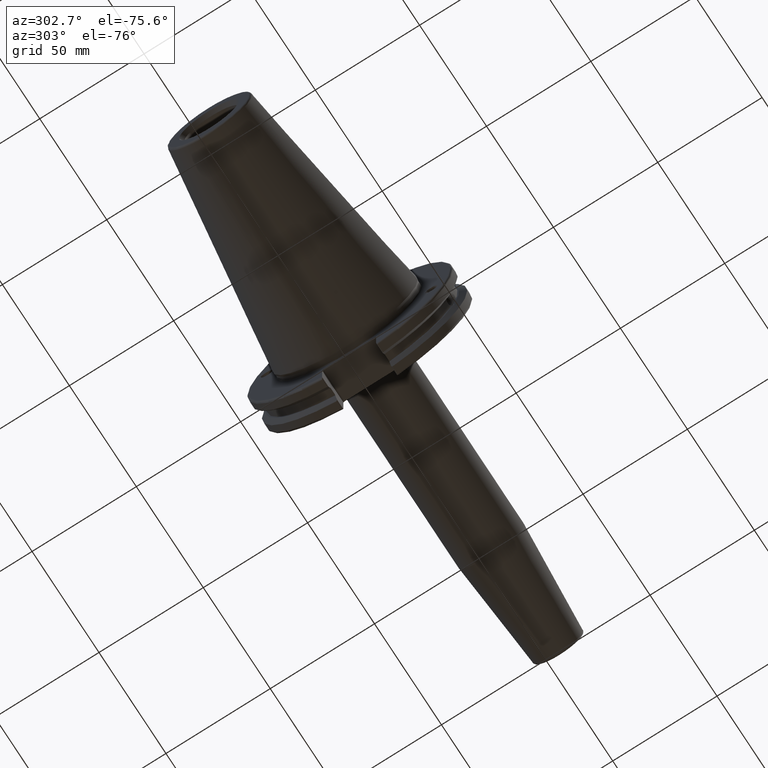
[diagram: clean part render]
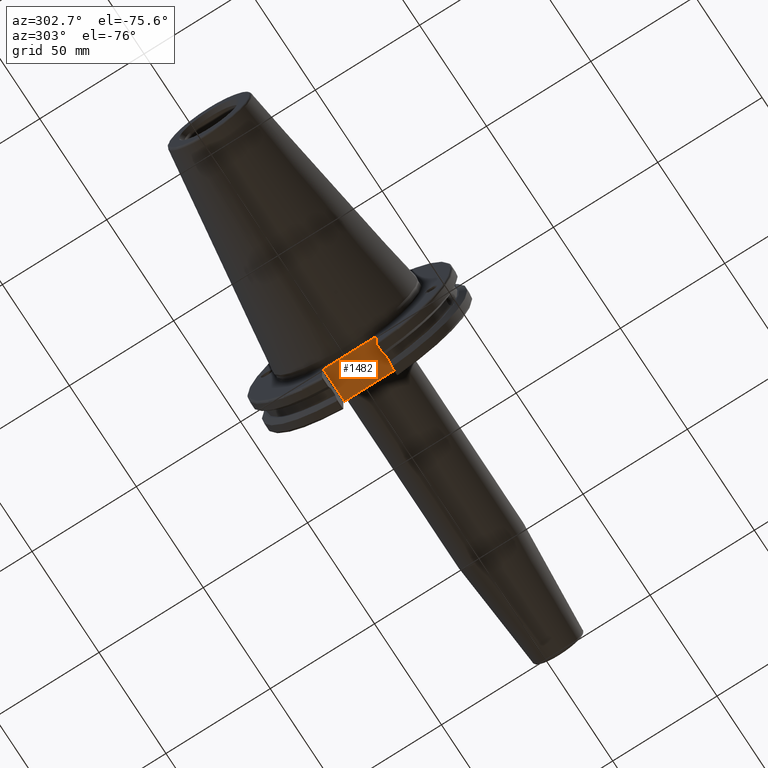
[diagram: same view with one face highlighted and labeled with its STEP entity id]
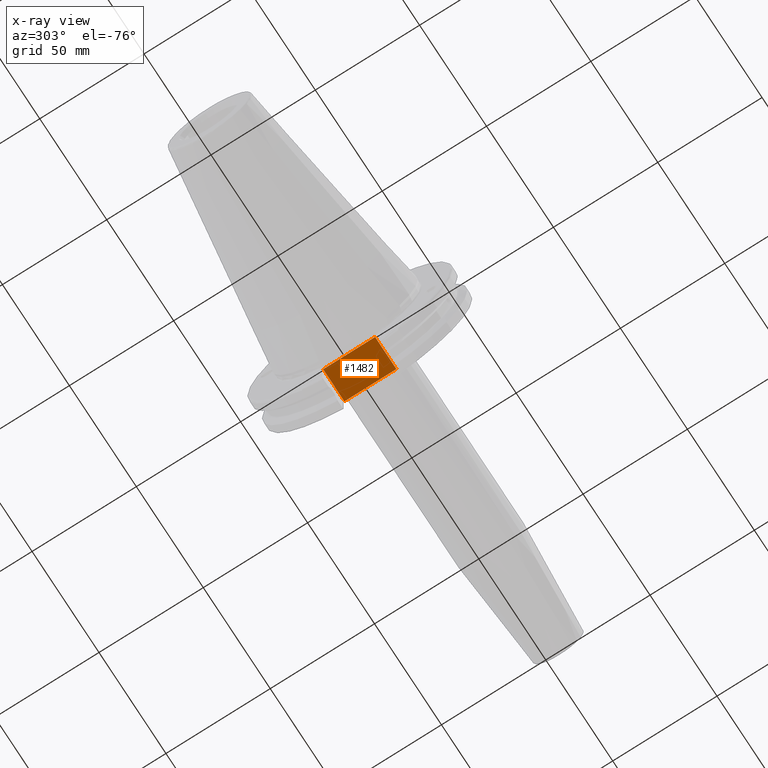
[diagram: x-ray of the same camera — body ghosted, the highlighted face saturated]
A machine part, auxiliary view. The second image highlights one B-rep face of the part: STEP entity #1482.
The next image is the same camera in x-ray: the body ghosted, the highlighted face saturated — about 0% of this face is hidden behind the body in this view.
In plain terms, the highlighted planar face has unit normal (0, 0, 1).
Its self-contained STEP definition (entity closure, byte-faithful):
#93=LINE('',#2161,#183);
#133=LINE('',#2744,#223);
#154=LINE('',#2956,#244);
#155=LINE('',#2958,#245);
#183=VECTOR('',#1752,10.);
#223=VECTOR('',#1930,10.);
#244=VECTOR('',#2009,10.);
#245=VECTOR('',#2012,10.);
#331=PLANE('',#1654);
#403=FACE_OUTER_BOUND('',#505,.T.);
#505=EDGE_LOOP('',(#1293,#1294,#1295,#1296));
#628=VERTEX_POINT('',#2158);
#629=VERTEX_POINT('',#2160);
#712=VERTEX_POINT('',#2741);
#713=VERTEX_POINT('',#2743);
#782=EDGE_CURVE('',#628,#629,#93,.T.);
#889=EDGE_CURVE('',#712,#713,#133,.T.);
#944=EDGE_CURVE('',#629,#712,#154,.T.);
#945=EDGE_CURVE('',#713,#628,#155,.T.);
#1293=ORIENTED_EDGE('',*,*,#944,.F.);
#1294=ORIENTED_EDGE('',*,*,#782,.F.);
#1295=ORIENTED_EDGE('',*,*,#945,.F.);
#1296=ORIENTED_EDGE('',*,*,#889,.F.);
#1482=ADVANCED_FACE('',(#403),#331,.F.);
#1654=AXIS2_PLACEMENT_3D('',#2957,#2010,#2011);
#1752=DIRECTION('',(0.,1.,0.));
#1930=DIRECTION('',(0.,-1.,0.));
#2009=DIRECTION('',(-1.,2.63163976207444E-16,0.));
#2010=DIRECTION('center_axis',(0.,0.,1.));
#2011=DIRECTION('ref_axis',(1.,0.,0.));
#2012=DIRECTION('',(1.,2.63163976207445E-16,0.));
#2158=CARTESIAN_POINT('',(19.05,-12.45,-35.306));
#2160=CARTESIAN_POINT('',(19.05,12.45,-35.306));
#2161=CARTESIAN_POINT('',(19.05,-3.33066907387547E-15,-35.306));
#2741=CARTESIAN_POINT('',(3.175,12.45,-35.306));
#2743=CARTESIAN_POINT('',(3.175,-12.45,-35.306));
#2744=CARTESIAN_POINT('',(3.175,24.60625,-35.306));
#2956=CARTESIAN_POINT('',(10.63125,12.45,-35.306));
#2957=CARTESIAN_POINT('Origin',(18.0875,-6.66133814775094E-15,-35.306));
#2958=CARTESIAN_POINT('',(19.06875,-12.45,-35.306));